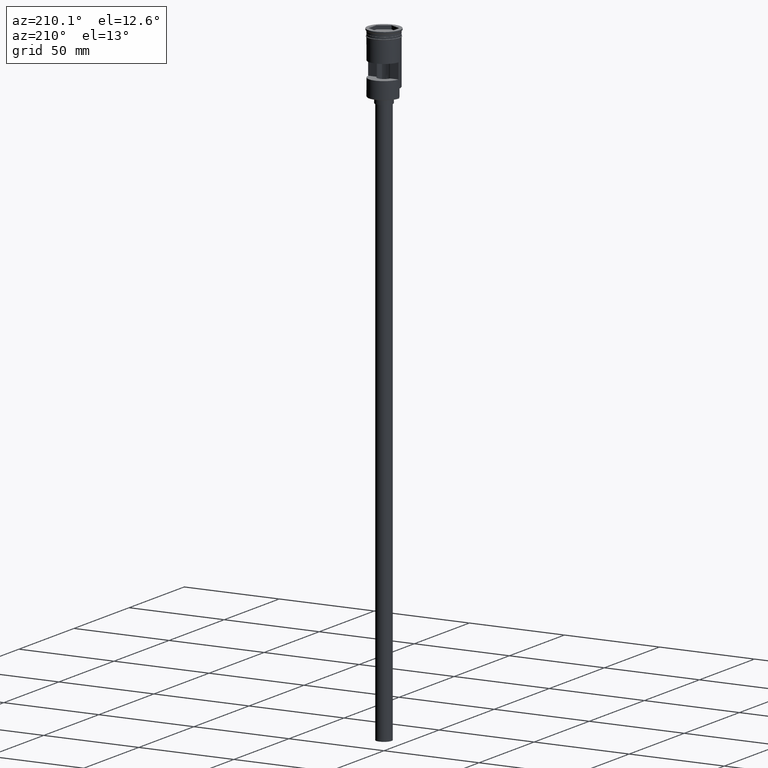
[diagram: clean part render]
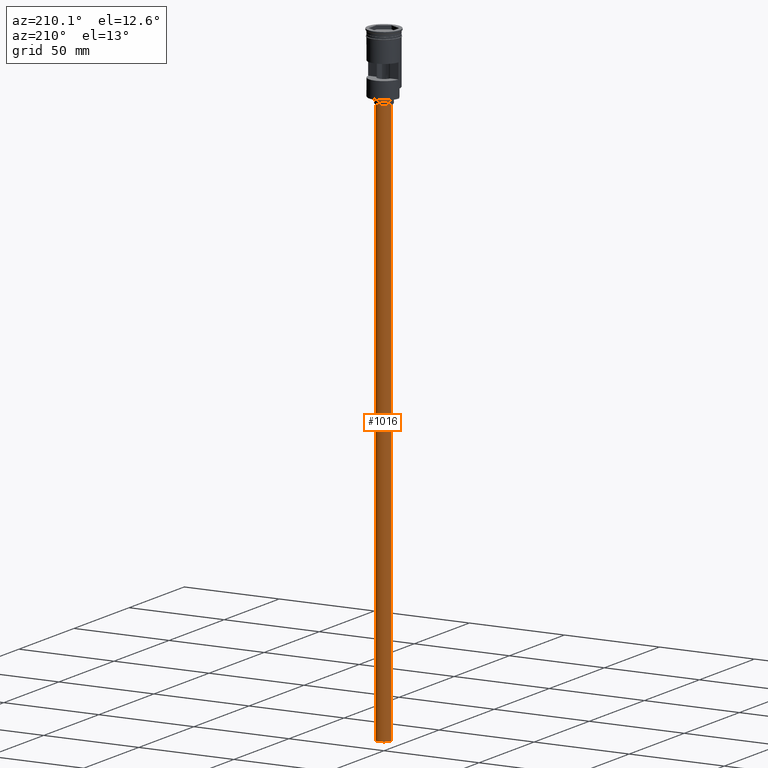
[diagram: same view with one face highlighted and labeled with its STEP entity id]
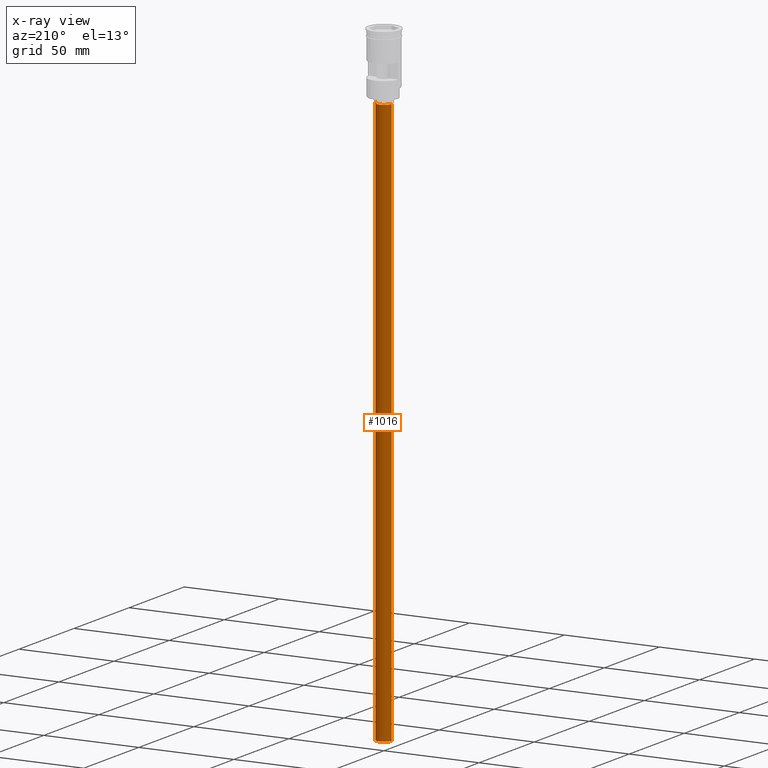
[diagram: x-ray of the same camera — body ghosted, the highlighted face saturated]
A machine part, auxiliary view. The second image highlights one B-rep face of the part: STEP entity #1016.
The next image is the same camera in x-ray: the body ghosted, the highlighted face saturated — about 0% of this face is hidden behind the body in this view.
In plain terms, the highlighted cylindrical surface (edge-blend (fillet) strip) has radius 4 mm, axis along (-0, -0, 1).
Its self-contained STEP definition (entity closure, byte-faithful):
#97 = ORIENTED_EDGE ( 'NONE', *, *, #836, .T. ) ;
#125 = DIRECTION ( 'NONE',  ( -0.000000000000000000, -0.000000000000000000, 1.000000000000000000 ) ) ;
#161 = EDGE_CURVE ( 'NONE', #1320, #187, #651, .T. ) ;
#164 = CARTESIAN_POINT ( 'NONE',  ( -4.000000000000000000, 4.898587196589412829E-16, -331.9999999999999432 ) ) ;
#187 = VERTEX_POINT ( 'NONE', #577 ) ;
#219 = EDGE_LOOP ( 'NONE', ( #884, #233, #97, #476 ) ) ;
#233 = ORIENTED_EDGE ( 'NONE', *, *, #161, .T. ) ;
#243 = LINE ( 'NONE', #994, #1357 ) ;
#329 = DIRECTION ( 'NONE',  ( 0.000000000000000000, 0.000000000000000000, -1.000000000000000000 ) ) ;
#336 = CIRCLE ( 'NONE', #1359, 4.000000000000000000 ) ;
#402 = CIRCLE ( 'NONE', #451, 4.000000000000000000 ) ;
#448 = CARTESIAN_POINT ( 'NONE',  ( 0.000000000000000000, 0.000000000000000000, -331.9999999999999432 ) ) ;
#451 = AXIS2_PLACEMENT_3D ( 'NONE', #1048, #1303, #654 ) ;
#460 = DIRECTION ( 'NONE',  ( -1.000000000000000000, 0.000000000000000000, 0.000000000000000000 ) ) ;
#476 = ORIENTED_EDGE ( 'NONE', *, *, #670, .F. ) ;
#577 = CARTESIAN_POINT ( 'NONE',  ( -4.000000000000000000, 4.898587196589412829E-16, -35.00000000000000000 ) ) ;
#600 = VECTOR ( 'NONE', #663, 1000.000000000000000 ) ;
#615 = CARTESIAN_POINT ( 'NONE',  ( 0.000000000000000000, 0.000000000000000000, -331.9999999999999432 ) ) ;
#651 = LINE ( 'NONE', #1157, #600 ) ;
#654 = DIRECTION ( 'NONE',  ( -1.000000000000000000, 0.000000000000000000, 0.000000000000000000 ) ) ;
#663 = DIRECTION ( 'NONE',  ( -0.000000000000000000, -0.000000000000000000, 1.000000000000000000 ) ) ;
#670 = EDGE_CURVE ( 'NONE', #1603, #1240, #243, .T. ) ;
#836 = EDGE_CURVE ( 'NONE', #187, #1240, #402, .T. ) ;
#876 = FACE_OUTER_BOUND ( 'NONE', #219, .T. ) ;
#884 = ORIENTED_EDGE ( 'NONE', *, *, #1413, .F. ) ;
#994 = CARTESIAN_POINT ( 'NONE',  ( 4.000000000000000000, 0.000000000000000000, -331.9999999999999432 ) ) ;
#1016 = ADVANCED_FACE ( 'NONE', ( #876 ), #1517, .T. ) ;
#1048 = CARTESIAN_POINT ( 'NONE',  ( 0.000000000000000000, 0.000000000000000000, -35.00000000000000000 ) ) ;
#1157 = CARTESIAN_POINT ( 'NONE',  ( -4.000000000000000000, 4.898587196589412829E-16, -331.9999999999999432 ) ) ;
#1160 = CARTESIAN_POINT ( 'NONE',  ( 4.000000000000000000, 0.000000000000000000, -35.00000000000000000 ) ) ;
#1240 = VERTEX_POINT ( 'NONE', #1160 ) ;
#1285 = AXIS2_PLACEMENT_3D ( 'NONE', #615, #1477, #1364 ) ;
#1303 = DIRECTION ( 'NONE',  ( 0.000000000000000000, 0.000000000000000000, -1.000000000000000000 ) ) ;
#1320 = VERTEX_POINT ( 'NONE', #164 ) ;
#1357 = VECTOR ( 'NONE', #125, 1000.000000000000000 ) ;
#1359 = AXIS2_PLACEMENT_3D ( 'NONE', #448, #329, #460 ) ;
#1364 = DIRECTION ( 'NONE',  ( 1.000000000000000000, 0.000000000000000000, 0.000000000000000000 ) ) ;
#1400 = CARTESIAN_POINT ( 'NONE',  ( 4.000000000000000000, 0.000000000000000000, -331.9999999999999432 ) ) ;
#1413 = EDGE_CURVE ( 'NONE', #1320, #1603, #336, .T. ) ;
#1477 = DIRECTION ( 'NONE',  ( -0.000000000000000000, -0.000000000000000000, 1.000000000000000000 ) ) ;
#1517 = CYLINDRICAL_SURFACE ( 'NONE', #1285, 4.000000000000000000 ) ;
#1603 = VERTEX_POINT ( 'NONE', #1400 ) ;